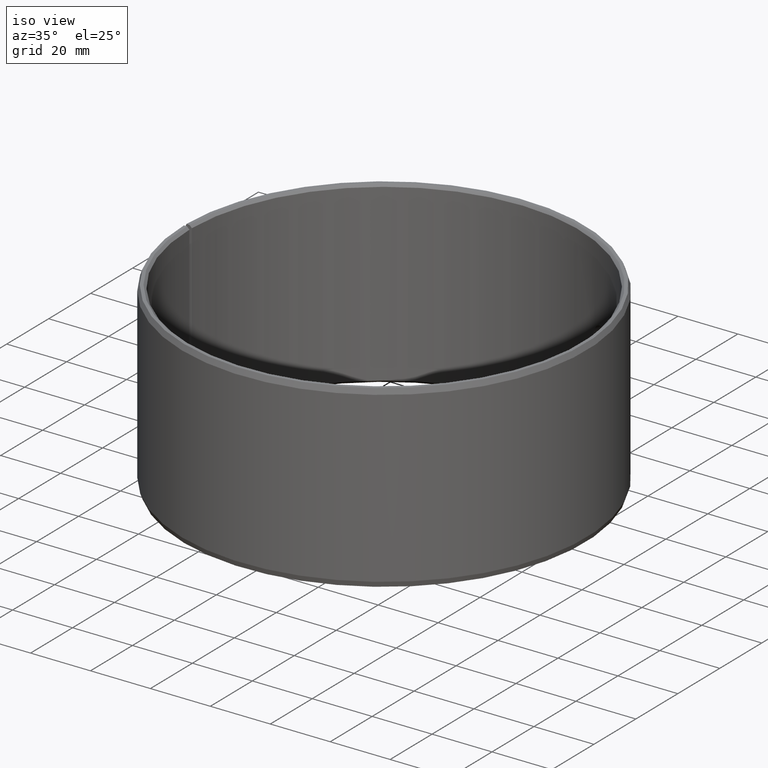
[diagram: clean part render]
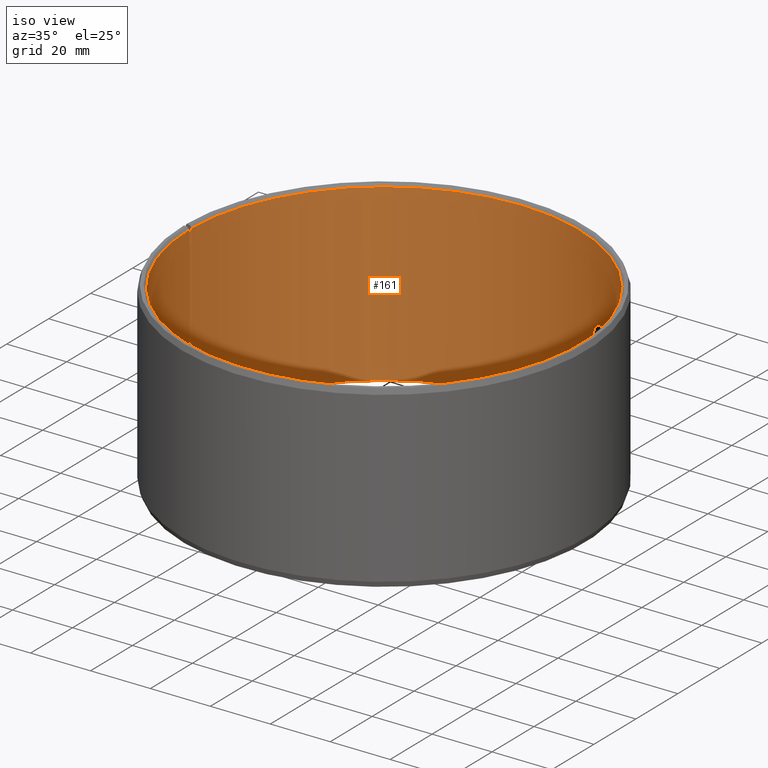
[diagram: same view with one face highlighted and labeled with its STEP entity id]
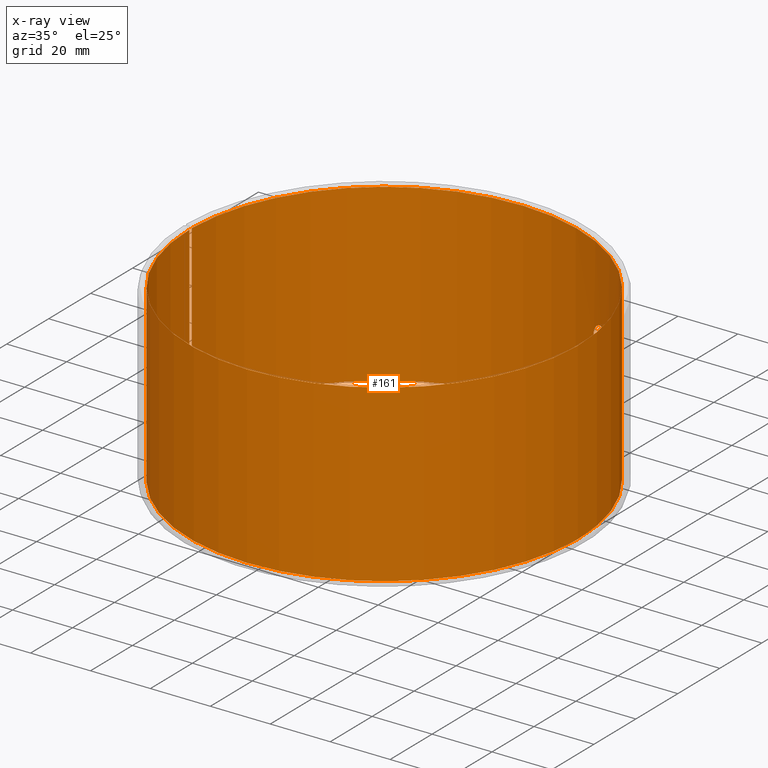
[diagram: x-ray of the same camera — body ghosted, the highlighted face saturated]
A machine part, iso view. The second image highlights one B-rep face of the part: STEP entity #161.
The next image is the same camera in x-ray: the body ghosted, the highlighted face saturated — about 0% of this face is hidden behind the body in this view.
In plain terms, the highlighted cylindrical surface (partial cylindrical patch) has radius 65 mm, axis along (-0, 0, -1).
Its self-contained STEP definition (entity closure, byte-faithful):
#161=ADVANCED_FACE('',(#182,#183),#184,.F.);
#182=FACE_OUTER_BOUND('',#208,.T.);
#183=FACE_BOUND('',#209,.T.);
#184=CYLINDRICAL_SURFACE('',#210,0.065);
#208=EDGE_LOOP('',(#281,#282,#283,#284));
#209=EDGE_LOOP('',(#285));
#210=AXIS2_PLACEMENT_3D('',#286,#287,#288);
#281=ORIENTED_EDGE('',*,*,#304,.T.);
#282=ORIENTED_EDGE('',*,*,#322,.F.);
#283=ORIENTED_EDGE('',*,*,#319,.F.);
#284=ORIENTED_EDGE('',*,*,#325,.T.);
#285=ORIENTED_EDGE('',*,*,#326,.T.);
#286=CARTESIAN_POINT('',(-6.93889390390723E-018,-6.93889390390723E-018,0.0));
#287=DIRECTION('',(6.12323399573677E-017,0.0,-1.0));
#288=DIRECTION('',(-1.0,0.0,-6.12323399573677E-017));
#304=EDGE_CURVE('',#333,#331,#334,.T.);
#319=EDGE_CURVE('',#359,#360,#361,.T.);
#322=EDGE_CURVE('',#360,#331,#364,.T.);
#325=EDGE_CURVE('',#359,#333,#367,.T.);
#326=EDGE_CURVE('',#368,#368,#369,.T.);
#331=VERTEX_POINT('',#375);
#333=VERTEX_POINT('',#378);
#334=CIRCLE('',#379,0.065);
#359=VERTEX_POINT('',#413);
#360=VERTEX_POINT('',#414);
#361=CIRCLE('',#415,0.065);
#364=LINE('',#420,#421);
#367=LINE('',#426,#427);
#368=VERTEX_POINT('',#428);
#369=B_SPLINE_CURVE_WITH_KNOTS('',3,(#429,#430,#431,#432,#433,#434,#435,#436,#437,#438,#439,#440,#441,#442,#443,#444,#445,#446,#447,#448,#449,#450,#451,#452,#453,#454,#455,#456,#457,#458,#459,#460,#461,#462,#463,#464,#465,#466,#467,#468,#469,#470,#471,#472,#473,#474,#475,#476,#477,#478,#479,#480,#481,#482,#483,#484,#485,#486,#487,#488,#489,#490,#491,#492,#493,#494,#495,#496,#497,#498,#499,#500,#501,#502),.UNSPECIFIED.,.T.,.F.,(2,2,2,2,2,2,2,2,2,2,2,2,2,2,2,2,2,2,2,2,2,2,2,2,2,2,2,2,2,2,2,2,2,2,2,2,2,2,2),(-0.000977265362731612,0.0,0.000977265362731594,0.00146589804409739,0.00195453072546319,0.00293179608819479,0.0039090614509264,0.004886326813658,0.0058635921763896,0.0068408575391212,0.00781812290185281,0.00879538826458441,0.00977265362731601,0.0102612863086818,0.0107499189900476,0.0117271843527792,0.0127044497155108,0.0131930823968765,0.0136817150782423,0.0146589804409739,0.0156362458037055,0.0166135111664371,0.0175907765291687,0.0185680418919003,0.0195453072546319,0.0205225726173635,0.0214998379800951,0.0224771033428267,0.0234543687055583,0.0244316340682899,0.0249202667496557,0.0254088994310214,0.0263861647937531,0.0273634301564847,0.0283406955192163,0.0293179608819479,0.0302952262446795,0.0312724916074111,0.0322497569701427),.UNSPECIFIED.);
#375=CARTESIAN_POINT('',(-6.93889390390723E-018,0.065,0.0008));
#378=CARTESIAN_POINT('',(0.00113440641842343,0.0649901001851654,0.0008));
#379=AXIS2_PLACEMENT_3D('',#580,#581,#582);
#413=CARTESIAN_POINT('',(0.00113440641842342,0.0649901001851654,0.0592));
#414=CARTESIAN_POINT('',(-1.04083408558608E-017,0.065,0.0592));
#415=AXIS2_PLACEMENT_3D('',#607,#608,#609);
#420=CARTESIAN_POINT('',(-1.04083408558608E-017,0.065,0.0592));
#421=VECTOR('',#612,1.0);
#426=CARTESIAN_POINT('',(0.00113440641842342,0.0649901001851654,0.0592));
#427=VECTOR('',#615,1.0);
#428=CARTESIAN_POINT('',(0.0529755997356271,-0.0376641186363178,0.03));
#429=CARTESIAN_POINT('',(0.0529755997356271,-0.0376641186363178,0.0303304548525843));
#430=CARTESIAN_POINT('',(0.0529755997356271,-0.0376641186363178,0.0296695451474157));
#431=CARTESIAN_POINT('',(0.0529944713916614,-0.0376376149883119,0.0293446369006768));
#432=CARTESIAN_POINT('',(0.0530497386034382,-0.0375596359025136,0.0288652485456031));
#433=CARTESIAN_POINT('',(0.0530726843957445,-0.0375272227893037,0.0287067912797632));
#434=CARTESIAN_POINT('',(0.0531277534095974,-0.0374492202441833,0.0283926140966223));
#435=CARTESIAN_POINT('',(0.0531600261460843,-0.0374034166615543,0.0282364935079543));
#436=CARTESIAN_POINT('',(0.0532684808586168,-0.0372489567405051,0.0277824063057545));
#437=CARTESIAN_POINT('',(0.0533566622159593,-0.0371227645089865,0.02749526854703));
#438=CARTESIAN_POINT('',(0.0535634735487045,-0.0368237335018447,0.0269518483861939));
#439=CARTESIAN_POINT('',(0.0536831344347547,-0.0366493437390429,0.0266946485948805));
#440=CARTESIAN_POINT('',(0.0539421665248316,-0.0362670096623614,0.0262336018518593));
#441=CARTESIAN_POINT('',(0.0540824717625455,-0.0360577460780676,0.0260266728244791));
#442=CARTESIAN_POINT('',(0.0543839950595144,-0.0356013466816024,0.0256611503310565));
#443=CARTESIAN_POINT('',(0.0545429593589677,-0.035357547133866,0.025505892794807));
#444=CARTESIAN_POINT('',(0.0548679964051159,-0.0348510190015406,0.0252564907341099));
#445=CARTESIAN_POINT('',(0.0550364703173534,-0.0345845502206306,0.0251604519992475));
#446=CARTESIAN_POINT('',(0.0553772177350655,-0.0340362738101483,0.0250319677958787));
#447=CARTESIAN_POINT('',(0.055546460793302,-0.0337594002754317,0.0250001769335929));
#448=CARTESIAN_POINT('',(0.0558825062036741,-0.0332001794274518,0.0249998245252385));
#449=CARTESIAN_POINT('',(0.0560510075128058,-0.0329148509586134,0.0250322993521988));
#450=CARTESIAN_POINT('',(0.0563730773571813,-0.0323601453351124,0.0251598853700582));
#451=CARTESIAN_POINT('',(0.0565275887281108,-0.0320893042648786,0.0252542860909942));
#452=CARTESIAN_POINT('',(0.0567500314592199,-0.0316931674542346,0.0254420774560419));
#453=CARTESIAN_POINT('',(0.0568229844185918,-0.0315621518613384,0.0255128852960464));
#454=CARTESIAN_POINT('',(0.0569631121491967,-0.0313085426462453,0.0256676354937148));
#455=CARTESIAN_POINT('',(0.0570304723759347,-0.0311856312447998,0.0257516265017594));
#456=CARTESIAN_POINT('',(0.0572248388438399,-0.0308284174347642,0.0260229850938957));
#457=CARTESIAN_POINT('',(0.0573441976975166,-0.0306055169731675,0.0262295472949105));
#458=CARTESIAN_POINT('',(0.0575629148606107,-0.0301921432084043,0.026696090395137));
#459=CARTESIAN_POINT('',(0.057658812616489,-0.0300082365218246,0.0269487457481951));
#460=CARTESIAN_POINT('',(0.0577838053372703,-0.0297664252744219,0.0273547133524613));
#461=CARTESIAN_POINT('',(0.0578223255493206,-0.0296914919423776,0.0274946182621983));
#462=CARTESIAN_POINT('',(0.0578930778277212,-0.0295533004134784,0.0277838026099377));
#463=CARTESIAN_POINT('',(0.0579253810880277,-0.029489899739647,0.027933664922481));
#464=CARTESIAN_POINT('',(0.0580108775430462,-0.0293215608397027,0.0283879123439525));
#465=CARTESIAN_POINT('',(0.0580535483093826,-0.029236785966634,0.0286995692107353));
#466=CARTESIAN_POINT('',(0.0581112121080621,-0.0291220046064896,0.0293403739244398));
#467=CARTESIAN_POINT('',(0.0581259273303055,-0.0290925518304267,0.0296718358818456));
#468=CARTESIAN_POINT('',(0.0581260333452519,-0.0290923400152117,0.0303245459297209));
#469=CARTESIAN_POINT('',(0.0581119011637238,-0.0291206292159088,0.0306489804455054));
#470=CARTESIAN_POINT('',(0.0580543955871478,-0.0292351031433756,0.0312939250521612));
#471=CARTESIAN_POINT('',(0.0580111518931773,-0.0293210133421902,0.0316098498723603));
#472=CARTESIAN_POINT('',(0.0578981597921326,-0.0295435045326526,0.0322117328527719));
#473=CARTESIAN_POINT('',(0.0578276273074579,-0.0296816276639635,0.0325022548362761));
#474=CARTESIAN_POINT('',(0.0576595517698144,-0.0300068257317648,0.0330495426836272));
#475=CARTESIAN_POINT('',(0.0575637593042636,-0.030190508320926,0.0333014076549537));
#476=CARTESIAN_POINT('',(0.0573480965669958,-0.0305981861890148,0.0337628215157796));
#477=CARTESIAN_POINT('',(0.0572267007962097,-0.0308249679993717,0.0339741031815049));
#478=CARTESIAN_POINT('',(0.0569668045601379,-0.0313026694450848,0.0343375699607558));
#479=CARTESIAN_POINT('',(0.0568280739905094,-0.0315541047297679,0.0344913567242924));
#480=CARTESIAN_POINT('',(0.0565319024862323,-0.0320817007039073,0.0347427340257537));
#481=CARTESIAN_POINT('',(0.0563743887754268,-0.0323578498713673,0.0348393343120623));
#482=CARTESIAN_POINT('',(0.0560534465028898,-0.032910686611625,0.034966992234518));
#483=CARTESIAN_POINT('',(0.0558883760863741,-0.0331903353338847,0.0349996735252023));
#484=CARTESIAN_POINT('',(0.0555484294788939,-0.0337561982986244,0.0350003216548587));
#485=CARTESIAN_POINT('',(0.0553784564869086,-0.0340342287302914,0.0349681309999653));
#486=CARTESIAN_POINT('',(0.0551254088912196,-0.0344414697219849,0.0348732631135646));
#487=CARTESIAN_POINT('',(0.0550412856112242,-0.0345757362928775,0.0348338193029951));
#488=CARTESIAN_POINT('',(0.0548735728135403,-0.0348412925794675,0.0347389673133048));
#489=CARTESIAN_POINT('',(0.0547896432584549,-0.0349731036124867,0.0346832296494147));
#490=CARTESIAN_POINT('',(0.0545440350075909,-0.0353559073395754,0.0344952439050371));
#491=CARTESIAN_POINT('',(0.0543870107246466,-0.0355967279140577,0.0343418635367543));
#492=CARTESIAN_POINT('',(0.0540872149018489,-0.0360506193831881,0.0339797025328785));
#493=CARTESIAN_POINT('',(0.0539436810316299,-0.0362647585349587,0.0337687848482971));
#494=CARTESIAN_POINT('',(0.0536843828000131,-0.036647516671976,0.0333078790177135));
#495=CARTESIAN_POINT('',(0.0535670205380865,-0.0368185806710234,0.0330564661012917));
#496=CARTESIAN_POINT('',(0.0533585973571343,-0.0371199900328065,0.032510795742914));
#497=CARTESIAN_POINT('',(0.0532691305861992,-0.0372480257582398,0.032219580692711));
#498=CARTESIAN_POINT('',(0.0531251472077511,-0.0374530964067166,0.0316181960536934));
#499=CARTESIAN_POINT('',(0.0530694925214274,-0.0375317621690563,0.031304097631953));
#500=CARTESIAN_POINT('',(0.0529944745592151,-0.0376376124932114,0.0306573547183369));
#501=CARTESIAN_POINT('',(0.0529755997356271,-0.0376641186363178,0.0303304548525843));
#502=CARTESIAN_POINT('',(0.0529755997356271,-0.0376641186363178,0.0296695451474157));
#580=CARTESIAN_POINT('',(-6.93889390390723E-018,-6.93889390390723E-018,0.0008));
#581=DIRECTION('',(6.12323399573677E-017,0.0,-1.0));
#582=DIRECTION('',(-1.0,0.0,-6.12323399573677E-017));
#607=CARTESIAN_POINT('',(-1.04083408558608E-017,-6.93889390390723E-018,0.0592));
#608=DIRECTION('',(6.12323399573677E-017,0.0,-1.0));
#609=DIRECTION('',(-1.0,0.0,-6.12323399573677E-017));
#612=DIRECTION('',(5.94083382183838E-017,0.0,-1.0));
#615=DIRECTION('',(5.94086160226834E-017,3.18332196910583E-020,-1.0));